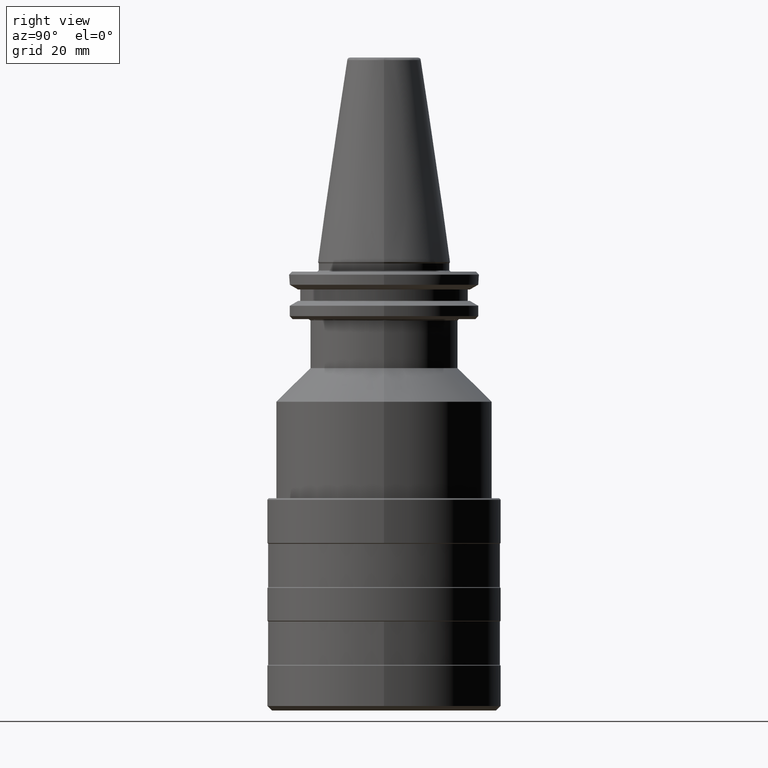
[diagram: clean part render]
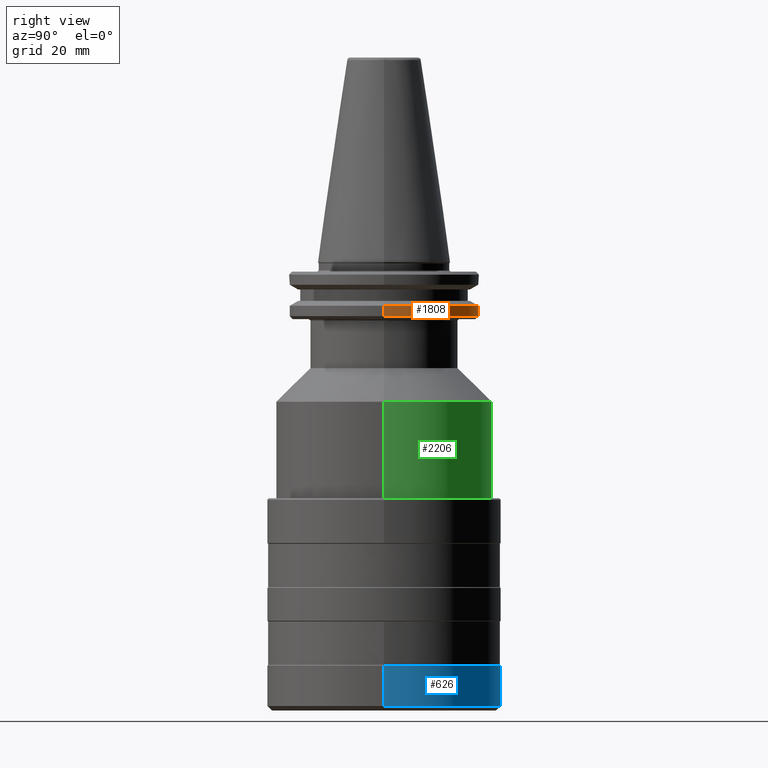
[diagram: same view with three faces highlighted in distinct colors, each labeled with its STEP entity id]
A machine part, right view with three faces highlighted in distinct colors.
Their STEP definitions:

[orange] entity #1808 — the highlighted cylindrical surface (partial cylindrical patch) has radius 31.75 mm, axis along (0, 0, 1).
#41 = VERTEX_POINT ( 'NONE', #279 ) ;
#279 = CARTESIAN_POINT ( 'NONE',  ( -31.75000000000000700, -2.407412430484044800E-032, -14.62183664200000300 ) ) ;
#327 = CARTESIAN_POINT ( 'NONE',  ( -31.75000000000000000, 3.888253587292846500E-015, -17.93431457499999800 ) ) ;
#334 = DIRECTION ( 'NONE',  ( 0.0000000000000000000, 0.0000000000000000000, 1.000000000000000000 ) ) ;
#335 = CYLINDRICAL_SURFACE ( 'NONE', #981, 31.75000000000000000 ) ;
#346 = CARTESIAN_POINT ( 'NONE',  ( 0.0000000000000000000, 4.860661613871468500E-017, -14.62183664200000300 ) ) ;
#395 = DIRECTION ( 'NONE',  ( 1.000000000000000000, 0.0000000000000000000, 9.834652777241588200E-016 ) ) ;
#402 = DIRECTION ( 'NONE',  ( -1.032481906733392500E-015, -0.0000000000000000000, 1.000000000000000000 ) ) ;
#405 = CARTESIAN_POINT ( 'NONE',  ( -1.509656410255521600E-013, 0.0000000000000000000, -18.10000000016286100 ) ) ;
#461 = AXIS2_PLACEMENT_3D ( 'NONE', #346, #1492, #737 ) ;
#537 = CARTESIAN_POINT ( 'NONE',  ( 0.0000000000000000000, 0.0000000000000000000, -17.93431457499999800 ) ) ;
#542 = DIRECTION ( 'NONE',  ( 0.0000000000000000000, 0.0000000000000000000, 1.000000000000000000 ) ) ;
#556 = DIRECTION ( 'NONE',  ( 1.000000000000000000, 0.0000000000000000000, 0.0000000000000000000 ) ) ;
#623 = LINE ( 'NONE', #327, #2034 ) ;
#647 = VERTEX_POINT ( 'NONE', #1324 ) ;
#712 = EDGE_CURVE ( 'NONE', #647, #989, #1832, .T. ) ;
#737 = DIRECTION ( 'NONE',  ( 0.0000000000000000000, 1.000000000000000000, 0.0000000000000000000 ) ) ;
#896 = CARTESIAN_POINT ( 'NONE',  ( -31.74999999983711200, 3.888253587272898600E-015, -18.10000000016289300 ) ) ;
#976 = CARTESIAN_POINT ( 'NONE',  ( 31.75000000000000000, 0.0000000000000000000, -17.93431457499999800 ) ) ;
#981 = AXIS2_PLACEMENT_3D ( 'NONE', #537, #542, #556 ) ;
#989 = VERTEX_POINT ( 'NONE', #1027 ) ;
#1027 = CARTESIAN_POINT ( 'NONE',  ( 31.75000000000000700, 3.888253587292847300E-015, -14.62183664200000300 ) ) ;
#1185 = ORIENTED_EDGE ( 'NONE', *, *, #1354, .T. ) ;
#1239 = ORIENTED_EDGE ( 'NONE', *, *, #1399, .T. ) ;
#1317 = CIRCLE ( 'NONE', #1507, 31.74999999983780400 ) ;
#1324 = CARTESIAN_POINT ( 'NONE',  ( 31.74999999983717900, 0.0000000000000000000, -18.10000000016282900 ) ) ;
#1341 = CIRCLE ( 'NONE', #461, 31.75000000000000700 ) ;
#1354 = EDGE_CURVE ( 'NONE', #647, #2191, #1317, .T. ) ;
#1399 = EDGE_CURVE ( 'NONE', #2191, #41, #623, .T. ) ;
#1417 = ORIENTED_EDGE ( 'NONE', *, *, #2178, .F. ) ;
#1492 = DIRECTION ( 'NONE',  ( -0.0000000000000000000, -2.997010603902405300E-017, 1.000000000000000000 ) ) ;
#1507 = AXIS2_PLACEMENT_3D ( 'NONE', #405, #402, #395 ) ;
#1631 = EDGE_LOOP ( 'NONE', ( #1185, #1239, #1417, #2029 ) ) ;
#1673 = DIRECTION ( 'NONE',  ( 0.0000000000000000000, 0.0000000000000000000, 1.000000000000000000 ) ) ;
#1760 = VECTOR ( 'NONE', #1673, 1000.000000000000000 ) ;
#1808 = ADVANCED_FACE ( 'NONE', ( #2286 ), #335, .T. ) ;
#1832 = LINE ( 'NONE', #976, #1760 ) ;
#2029 = ORIENTED_EDGE ( 'NONE', *, *, #712, .F. ) ;
#2034 = VECTOR ( 'NONE', #334, 1000.000000000000000 ) ;
#2178 = EDGE_CURVE ( 'NONE', #989, #41, #1341, .T. ) ;
#2191 = VERTEX_POINT ( 'NONE', #896 ) ;
#2286 = FACE_OUTER_BOUND ( 'NONE', #1631, .T. ) ;

[blue] entity #626 — the highlighted cylindrical surface (partial cylindrical patch) has radius 39 mm, axis along (0, 0, 1).
#109 = CIRCLE ( 'NONE', #1982, 38.99999999999995000 ) ;
#120 = ORIENTED_EDGE ( 'NONE', *, *, #124, .T. ) ;
#124 = EDGE_CURVE ( 'NONE', #1305, #177, #1349, .T. ) ;
#177 = VERTEX_POINT ( 'NONE', #1765 ) ;
#274 = VERTEX_POINT ( 'NONE', #1264 ) ;
#295 = ORIENTED_EDGE ( 'NONE', *, *, #1128, .F. ) ;
#516 = EDGE_CURVE ( 'NONE', #1305, #274, #109, .T. ) ;
#540 = CARTESIAN_POINT ( 'NONE',  ( -38.99999999999995000, 4.776122516674674700E-015, -148.5000000000000600 ) ) ;
#617 = ORIENTED_EDGE ( 'NONE', *, *, #1034, .T. ) ;
#626 = ADVANCED_FACE ( 'NONE', ( #1744 ), #705, .T. ) ;
#705 = CYLINDRICAL_SURFACE ( 'NONE', #2195, 39.00000000000000000 ) ;
#710 = VECTOR ( 'NONE', #1906, 1000.000000000000000 ) ;
#738 = CARTESIAN_POINT ( 'NONE',  ( 39.00000000000000000, 0.0000000000000000000, -148.5000000000000000 ) ) ;
#776 = CARTESIAN_POINT ( 'NONE',  ( 0.0000000000000000000, 0.0000000000000000000, -135.0000000000000000 ) ) ;
#862 = VECTOR ( 'NONE', #1174, 1000.000000000000000 ) ;
#885 = AXIS2_PLACEMENT_3D ( 'NONE', #776, #1010, #1048 ) ;
#964 = CARTESIAN_POINT ( 'NONE',  ( 39.00000000000000000, 4.776122516674677900E-015, -135.0000000000000000 ) ) ;
#1010 = DIRECTION ( 'NONE',  ( -0.0000000000000000000, -0.0000000000000000000, -1.000000000000000000 ) ) ;
#1026 = CARTESIAN_POINT ( 'NONE',  ( -39.00000000000000000, 4.776122516674677900E-015, -148.5000000000000000 ) ) ;
#1034 = EDGE_CURVE ( 'NONE', #177, #1103, #2057, .T. ) ;
#1048 = DIRECTION ( 'NONE',  ( 1.000000000000000000, 0.0000000000000000000, 0.0000000000000000000 ) ) ;
#1103 = VERTEX_POINT ( 'NONE', #964 ) ;
#1106 = ORIENTED_EDGE ( 'NONE', *, *, #516, .F. ) ;
#1128 = EDGE_CURVE ( 'NONE', #274, #1103, #2016, .T. ) ;
#1165 = EDGE_LOOP ( 'NONE', ( #1106, #120, #617, #295 ) ) ;
#1174 = DIRECTION ( 'NONE',  ( 0.0000000000000000000, 0.0000000000000000000, 1.000000000000000000 ) ) ;
#1257 = CARTESIAN_POINT ( 'NONE',  ( 0.0000000000000000000, 0.0000000000000000000, -148.5000000000000600 ) ) ;
#1264 = CARTESIAN_POINT ( 'NONE',  ( 38.99999999999995000, 0.0000000000000000000, -148.5000000000000600 ) ) ;
#1288 = DIRECTION ( 'NONE',  ( 1.000000000000000000, 0.0000000000000000000, 0.0000000000000000000 ) ) ;
#1305 = VERTEX_POINT ( 'NONE', #540 ) ;
#1349 = LINE ( 'NONE', #1026, #862 ) ;
#1401 = DIRECTION ( 'NONE',  ( -0.0000000000000000000, -0.0000000000000000000, -1.000000000000000000 ) ) ;
#1449 = DIRECTION ( 'NONE',  ( 0.0000000000000000000, 0.0000000000000000000, 1.000000000000000000 ) ) ;
#1744 = FACE_OUTER_BOUND ( 'NONE', #1165, .T. ) ;
#1765 = CARTESIAN_POINT ( 'NONE',  ( -39.00000000000000000, 0.0000000000000000000, -135.0000000000000000 ) ) ;
#1771 = CARTESIAN_POINT ( 'NONE',  ( 0.0000000000000000000, 0.0000000000000000000, -148.5000000000000000 ) ) ;
#1807 = DIRECTION ( 'NONE',  ( 1.000000000000000000, 0.0000000000000000000, 0.0000000000000000000 ) ) ;
#1906 = DIRECTION ( 'NONE',  ( 0.0000000000000000000, 0.0000000000000000000, 1.000000000000000000 ) ) ;
#1982 = AXIS2_PLACEMENT_3D ( 'NONE', #1257, #1401, #1288 ) ;
#2016 = LINE ( 'NONE', #738, #710 ) ;
#2057 = CIRCLE ( 'NONE', #885, 39.00000000000000000 ) ;
#2195 = AXIS2_PLACEMENT_3D ( 'NONE', #1771, #1449, #1807 ) ;

[green] entity #2206 — the highlighted cylindrical surface (partial cylindrical patch) has radius 36 mm, axis along (0, 0, 1).
#25 = CARTESIAN_POINT ( 'NONE',  ( 0.0000000000000000000, 0.0000000000000000000, -79.00000000000000000 ) ) ;
#63 = DIRECTION ( 'NONE',  ( 0.0000000000000000000, 0.0000000000000000000, 1.000000000000000000 ) ) ;
#89 = CARTESIAN_POINT ( 'NONE',  ( -36.00000000000001400, 4.408728476930472400E-015, -79.00000000000000000 ) ) ;
#122 = DIRECTION ( 'NONE',  ( 0.0000000000000000000, 0.0000000000000000000, 1.000000000000000000 ) ) ;
#130 = AXIS2_PLACEMENT_3D ( 'NONE', #229, #220, #214 ) ;
#174 = DIRECTION ( 'NONE',  ( 0.0000000000000000000, 0.0000000000000000000, 1.000000000000000000 ) ) ;
#182 = ORIENTED_EDGE ( 'NONE', *, *, #1992, .F. ) ;
#185 = CARTESIAN_POINT ( 'NONE',  ( 36.00000000000001400, 0.0000000000000000000, -79.00000000000000000 ) ) ;
#214 = DIRECTION ( 'NONE',  ( 1.000000000000000000, 0.0000000000000000000, 0.0000000000000000000 ) ) ;
#220 = DIRECTION ( 'NONE',  ( -0.0000000000000000000, -0.0000000000000000000, -1.000000000000000000 ) ) ;
#229 = CARTESIAN_POINT ( 'NONE',  ( 0.0000000000000000000, 0.0000000000000000000, -79.00000000000000000 ) ) ;
#275 = CARTESIAN_POINT ( 'NONE',  ( 35.99999999999999300, 4.408728476930470100E-015, -46.75000000000000000 ) ) ;
#317 = VERTEX_POINT ( 'NONE', #2097 ) ;
#449 = LINE ( 'NONE', #185, #514 ) ;
#484 = AXIS2_PLACEMENT_3D ( 'NONE', #25, #122, #2078 ) ;
#512 = EDGE_CURVE ( 'NONE', #1238, #1976, #2054, .T. ) ;
#514 = VECTOR ( 'NONE', #174, 1000.000000000000000 ) ;
#532 = CARTESIAN_POINT ( 'NONE',  ( -35.99999999999999300, 0.0000000000000000000, -46.75000000000000000 ) ) ;
#538 = CARTESIAN_POINT ( 'NONE',  ( -36.00000000000001400, 4.408728476930472400E-015, -79.00000000000000000 ) ) ;
#844 = ORIENTED_EDGE ( 'NONE', *, *, #512, .T. ) ;
#947 = CYLINDRICAL_SURFACE ( 'NONE', #484, 36.00000000000001400 ) ;
#990 = ORIENTED_EDGE ( 'NONE', *, *, #1442, .T. ) ;
#1070 = ORIENTED_EDGE ( 'NONE', *, *, #2019, .F. ) ;
#1083 = DIRECTION ( 'NONE',  ( -0.0000000000000000000, -0.0000000000000000000, -1.000000000000000000 ) ) ;
#1138 = AXIS2_PLACEMENT_3D ( 'NONE', #2285, #1083, #1228 ) ;
#1228 = DIRECTION ( 'NONE',  ( 1.000000000000000000, 0.0000000000000000000, 0.0000000000000000000 ) ) ;
#1235 = VERTEX_POINT ( 'NONE', #538 ) ;
#1238 = VERTEX_POINT ( 'NONE', #532 ) ;
#1442 = EDGE_CURVE ( 'NONE', #1235, #1238, #1648, .T. ) ;
#1488 = FACE_OUTER_BOUND ( 'NONE', #1660, .T. ) ;
#1648 = LINE ( 'NONE', #89, #2145 ) ;
#1660 = EDGE_LOOP ( 'NONE', ( #182, #990, #844, #1070 ) ) ;
#1976 = VERTEX_POINT ( 'NONE', #275 ) ;
#1992 = EDGE_CURVE ( 'NONE', #1235, #317, #2038, .T. ) ;
#2019 = EDGE_CURVE ( 'NONE', #317, #1976, #449, .T. ) ;
#2038 = CIRCLE ( 'NONE', #130, 36.00000000000001400 ) ;
#2054 = CIRCLE ( 'NONE', #1138, 36.00000000000001400 ) ;
#2078 = DIRECTION ( 'NONE',  ( 1.000000000000000000, 0.0000000000000000000, 0.0000000000000000000 ) ) ;
#2097 = CARTESIAN_POINT ( 'NONE',  ( 36.00000000000001400, 0.0000000000000000000, -79.00000000000000000 ) ) ;
#2145 = VECTOR ( 'NONE', #63, 1000.000000000000000 ) ;
#2206 = ADVANCED_FACE ( 'NONE', ( #1488 ), #947, .T. ) ;
#2285 = CARTESIAN_POINT ( 'NONE',  ( 0.0000000000000000000, 0.0000000000000000000, -46.75000000000000000 ) ) ;